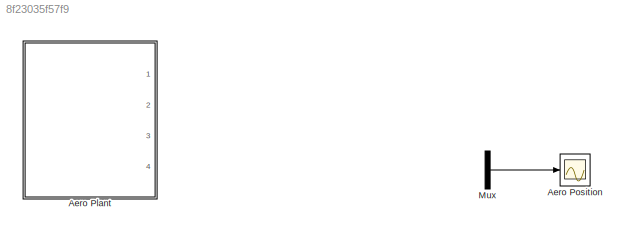
MODEL slx_8f23035f57f9
KIND model
CONFIG AbsTol = auto
CONFIG EnableMultiTasking = on
CONFIG FixedStep = 0.002
CONFIG MaxStep = auto
CONFIG MinStep = auto
CONFIG RelTol = 1e-3
CONFIG SampleTimeConstraint = Unconstrained
CONFIG SolverName = ode1
CONFIG StartTime = 0.0
CONFIG StopTime = 30
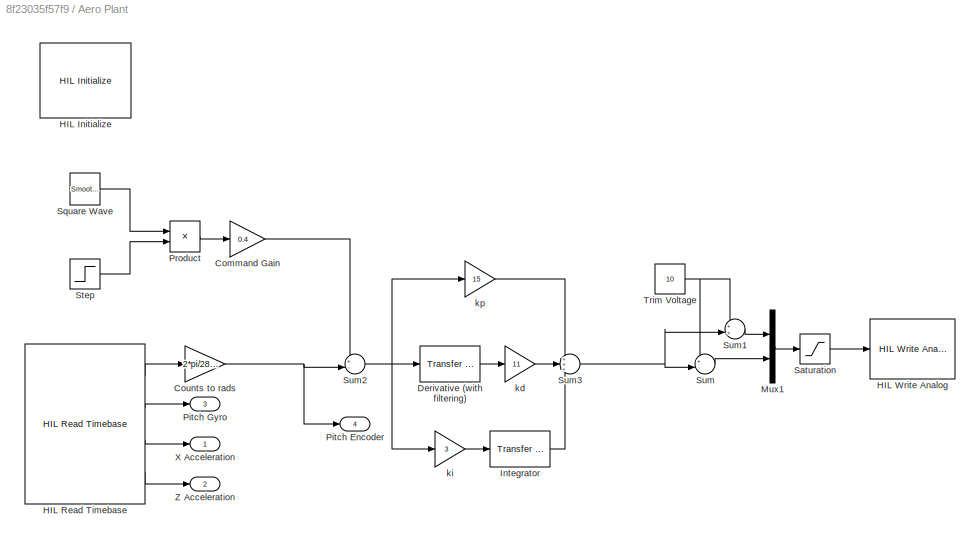
BLOCK [SubSystem] Aero Plant
  Ports = [0, 4]
  RequestExecContextInheritance = off
BLOCK [Gain] Aero Plant/Command Gain
  Gain = 0.4
BLOCK [Gain] Aero Plant/Counts to rads
  Gain = 2*pi/2880
BLOCK [Reference] Aero Plant/Derivative (with filtering)  REF=simulink_extras/Additional
Linear/Transfer Fcn
(with initial states)
  Ports = [1, 1]
  SourceBlock = simulink_extras/Additional\nLinear/Transfer Fcn\n(with initial states)
  SourceProductBaseCode = SL
  SourceType = Transfer Function with Initial States
BLOCK [Reference] Aero Plant/HIL Initialize  REF=quarc_library/Data Acquisition/Generic/Configuration/HIL Initialize
  AttributesFormatString = %<object_name> (%<board_type>-%<board_number>)
  Ports = []
  Priority = -99
  SourceBlock = quarc_library/Data Acquisition/Generic/Configuration/HIL Initialize
  SourceProductName = QUARC Targets
  SourceType = HIL Initialize
  UserDataPersistent = on
BLOCK [Reference] Aero Plant/HIL Read Timebase  REF=quarc_library/Data Acquisition/Generic/Timebases/HIL Read
Timebase
  AttributesFormatString = (%<object_name>)
  Ports = [0, 4]
  SourceBlock = quarc_library/Data Acquisition/Generic/Timebases/HIL Read\nTimebase
  SourceProductName = QUARC Targets
  SourceType = HIL Read Timebase
  UserDataPersistent = on
BLOCK [Reference] Aero Plant/HIL Write Analog  REF=quarc_library/Data Acquisition/Generic/Immediate I//O/HIL Write Analog
  AttributesFormatString = (%<object_name>)
  Ports = [1]
  SourceBlock = quarc_library/Data Acquisition/Generic/Immediate I//O/HIL Write Analog
  SourceProductName = QUARC Targets
  SourceType = HIL Write Analog
  UserDataPersistent = on
BLOCK [Reference] Aero Plant/Integrator  REF=simulink_extras/Additional
Linear/Transfer Fcn
(with initial states)
  Ports = [1, 1]
  SourceBlock = simulink_extras/Additional\nLinear/Transfer Fcn\n(with initial states)
  SourceProductBaseCode = SL
  SourceType = Transfer Function with Initial States
BLOCK [Mux] Aero Plant/Mux1
  DisplayOption = bar
  Inputs = 2
  Ports = [2, 1]
BLOCK [Outport] Aero Plant/Pitch Encoder
  Port = 4
BLOCK [Outport] Aero Plant/Pitch Gyro
  Port = 3
BLOCK [Product] Aero Plant/Product
  Ports = [2, 1]
BLOCK [Saturate] Aero Plant/Saturation
  LowerLimit = 10
  UpperLimit = 24
BLOCK [Reference] Aero Plant/Square Wave  REF=quarc_library/Sources/Signals/Smooth Signal
Generator
  Ports = [0, 1]
  SourceBlock = quarc_library/Sources/Signals/Smooth Signal\nGenerator
  SourceProductName = QUARC Targets
  SourceType = Smooth Signal Generator
BLOCK [Step] Aero Plant/Step
  SampleTime = 0
  Time = 5
BLOCK [Sum] Aero Plant/Sum
  Inputs = +-|
  Ports = [2, 1]
BLOCK [Sum] Aero Plant/Sum1
  Inputs = ++|
  Ports = [2, 1]
BLOCK [Sum] Aero Plant/Sum2
  Inputs = +-|
  Ports = [2, 1]
BLOCK [Sum] Aero Plant/Sum3
  Inputs = +++
  Ports = [3, 1]
BLOCK [Constant] Aero Plant/Trim Voltage
  Value = 10
BLOCK [Outport] Aero Plant/X Acceleration
BLOCK [Outport] Aero Plant/Z Acceleration
  Port = 2
BLOCK [Gain] Aero Plant/kd
  Gain = 11
BLOCK [Gain] Aero Plant/ki
  Gain = 3
BLOCK [Gain] Aero Plant/kp
  Gain = 15
BLOCK [Scope] Aero Position
  Floating = off
  NumInputPorts = 1
  Ports = [1]
  ScopeSpecificationString = Simulink.scopes.TimeScopeBlockCfg('CurrentConfiguration', extmgr.ConfigurationSet(extmgr.Configuration('Core','General UI',true),extmgr.Configuration('Core','Source UI',true),extmgr.Configuration('Sources','WiredSimulink',true,'DataLogging',true,'DataLoggingVariableName','XData','DataLoggingMaxPoints','15000','DataLoggingLimitDataPoints',true,'DataLoggingSaveFormat','Array','DataLoggingDecimation'...<+1791ch>
BLOCK [Mux] Mux
  DisplayOption = bar
  Inputs = 3
  Ports = [3, 1]
LINE Aero Plant/Command Gain:1 -> Aero Plant/Sum2:1
NET Aero Plant/Counts to rads:1 -> Aero Plant/Pitch Encoder:1, Aero Plant/Sum2:2
LINE Aero Plant/Derivative (with filtering):1 -> Aero Plant/kd:1
LINE Aero Plant/HIL Read Timebase:1 -> Aero Plant/Counts to rads:1
LINE Aero Plant/HIL Read Timebase:2 -> Aero Plant/Pitch Gyro:1
LINE Aero Plant/HIL Read Timebase:3 -> Aero Plant/X Acceleration:1
LINE Aero Plant/HIL Read Timebase:4 -> Aero Plant/Z Acceleration:1
LINE Aero Plant/Integrator:1 -> Aero Plant/Sum3:3
LINE Aero Plant/Mux1:1 -> Aero Plant/Saturation:1
LINE Aero Plant/Product:1 -> Aero Plant/Command Gain:1
LINE Aero Plant/Saturation:1 -> Aero Plant/HIL Write Analog:1
LINE Aero Plant/Square Wave:1 -> Aero Plant/Product:1
LINE Aero Plant/Step:1 -> Aero Plant/Product:2
LINE Aero Plant/Sum1:1 -> Aero Plant/Mux1:1
NET Aero Plant/Sum2:1 -> Aero Plant/Derivative (with filtering):1, Aero Plant/ki:1, Aero Plant/kp:1
NET Aero Plant/Sum3:1 -> Aero Plant/Sum1:2, Aero Plant/Sum:2
LINE Aero Plant/Sum:1 -> Aero Plant/Mux1:2
NET Aero Plant/Trim Voltage:1 -> Aero Plant/Sum1:1, Aero Plant/Sum:1
LINE Aero Plant/kd:1 -> Aero Plant/Sum3:2
LINE Aero Plant/ki:1 -> Aero Plant/Integrator:1
LINE Aero Plant/kp:1 -> Aero Plant/Sum3:1
LINE Mux:1 -> Aero Position:1
note: NET lines group one-source signal fan-out (src -> all destinations, sorted); 1:1 wires keep LINE
